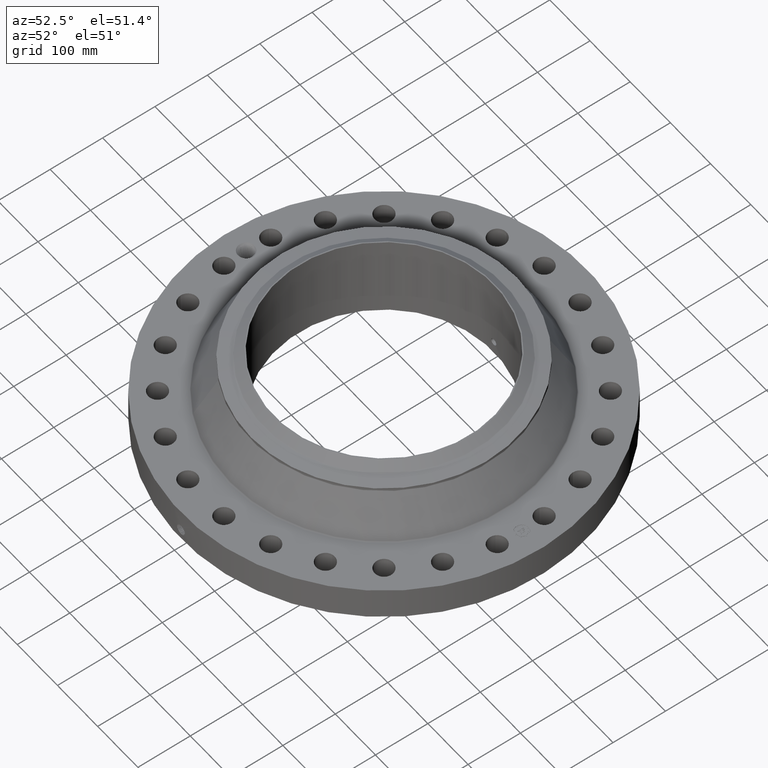
[diagram: clean part render]
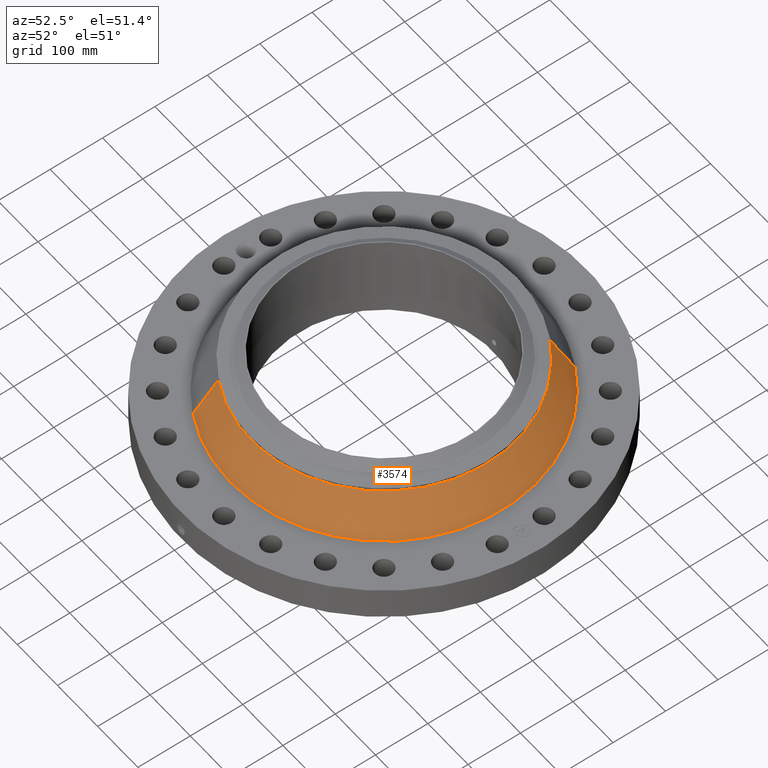
[diagram: same view with one face highlighted and labeled with its STEP entity id]
A machine part, auxiliary view. The second image highlights one B-rep face of the part: STEP entity #3574.
In plain terms, the highlighted conical surface has half-angle 27.842 deg.
Its self-contained STEP definition (entity closure, byte-faithful):
#2853=AXIS2_PLACEMENT_3D('Circle Axis2P3D',#2851,#2852,$) ;
#3547=AXIS2_PLACEMENT_3D('Cone Axis2P3D',#3544,#3545,#3546) ;
#3558=AXIS2_PLACEMENT_3D('Circle Axis2P3D',#3556,#3557,$) ;
#2848=CARTESIAN_POINT('Vertex',(5.5259642045,10.115209627,2.62395561081)) ;
#2851=CARTESIAN_POINT('Axis2P3D Location',(0.,0.,2.62395561081)) ;
#2855=CARTESIAN_POINT('Vertex',(-5.5259642045,-10.115209627,2.62395561081)) ;
#3544=CARTESIAN_POINT('Axis2P3D Location',(0.,0.,5.5135401396)) ;
#3549=CARTESIAN_POINT('Line Origine',(5.16010979528,9.44551762295,4.06874787521)) ;
#3553=CARTESIAN_POINT('Vertex',(4.79425538606,8.77582561894,5.5135401396)) ;
#3556=CARTESIAN_POINT('Axis2P3D Location',(0.,0.,5.5135401396)) ;
#3560=CARTESIAN_POINT('Vertex',(-4.79425538606,-8.77582561894,5.5135401396)) ;
#3563=CARTESIAN_POINT('Line Origine',(-5.16010979528,-9.44551762295,4.06874787521)) ;
#2852=DIRECTION('Axis2P3D Direction',(0.,0.,-0.0393700787402)) ;
#3545=DIRECTION('Axis2P3D Direction',(0.,0.,-0.0393700787402)) ;
#3546=DIRECTION('Axis2P3D XDirection',(-0.0188750212049,-0.0345504945626,0.)) ;
#3550=DIRECTION('Vector Direction',(0.00881532528861,0.0161363447037,-0.0348125195823)) ;
#3557=DIRECTION('Axis2P3D Direction',(0.,0.,-0.0393700787402)) ;
#3564=DIRECTION('Vector Direction',(-0.00881532528861,-0.0161363447037,-0.0348125195823)) ;
#3551=VECTOR('Line Direction',#3550,0.0393700787402) ;
#3565=VECTOR('Line Direction',#3564,0.0393700787402) ;
#3569=ORIENTED_EDGE('',*,*,#2857,.F.) ;
#3570=ORIENTED_EDGE('',*,*,#3555,.T.) ;
#3571=ORIENTED_EDGE('',*,*,#3562,.T.) ;
#3572=ORIENTED_EDGE('',*,*,#3567,.F.) ;
#3574=ADVANCED_FACE('PartBody',(#3573),#3548,.T.) ;
#2854=CIRCLE('generated circle',#2853,11.5262199435) ;
#3559=CIRCLE('generated circle',#3558,10.) ;
#3548=CONICAL_SURFACE('Cone',#3547,10.,0.485936413733) ;
#2857=EDGE_CURVE('',#2849,#2856,#2854,.T.) ;
#3555=EDGE_CURVE('',#2849,#3554,#3552,.F.) ;
#3562=EDGE_CURVE('',#3554,#3561,#3559,.T.) ;
#3567=EDGE_CURVE('',#2856,#3561,#3566,.F.) ;
#3568=EDGE_LOOP('',(#3569,#3570,#3571,#3572)) ;
#3573=FACE_OUTER_BOUND('',#3568,.T.) ;
#3552=LINE('Line',#3549,#3551) ;
#3566=LINE('Line',#3563,#3565) ;
#2849=VERTEX_POINT('',#2848) ;
#2856=VERTEX_POINT('',#2855) ;
#3554=VERTEX_POINT('',#3553) ;
#3561=VERTEX_POINT('',#3560) ;